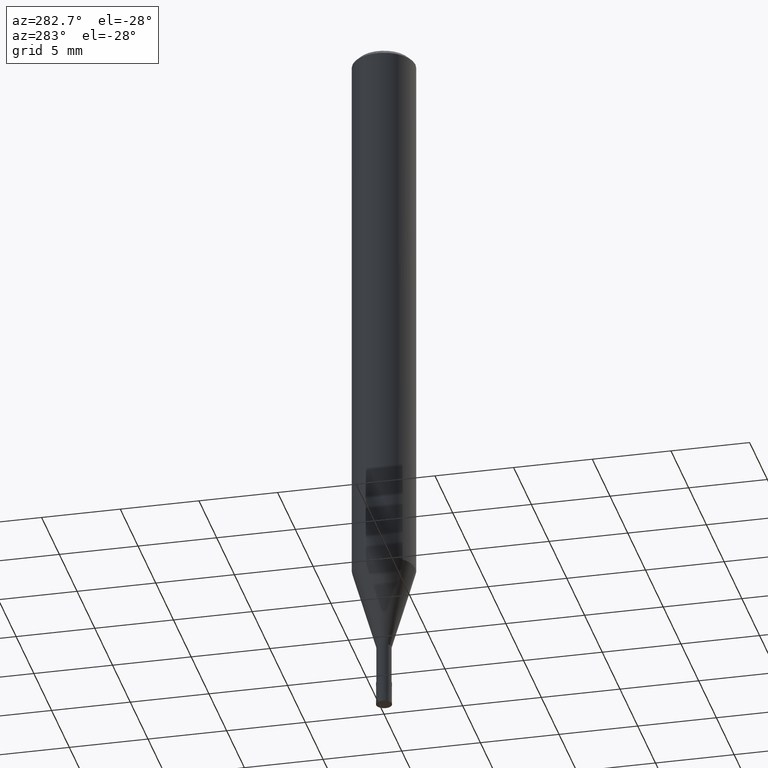
[diagram: clean part render]
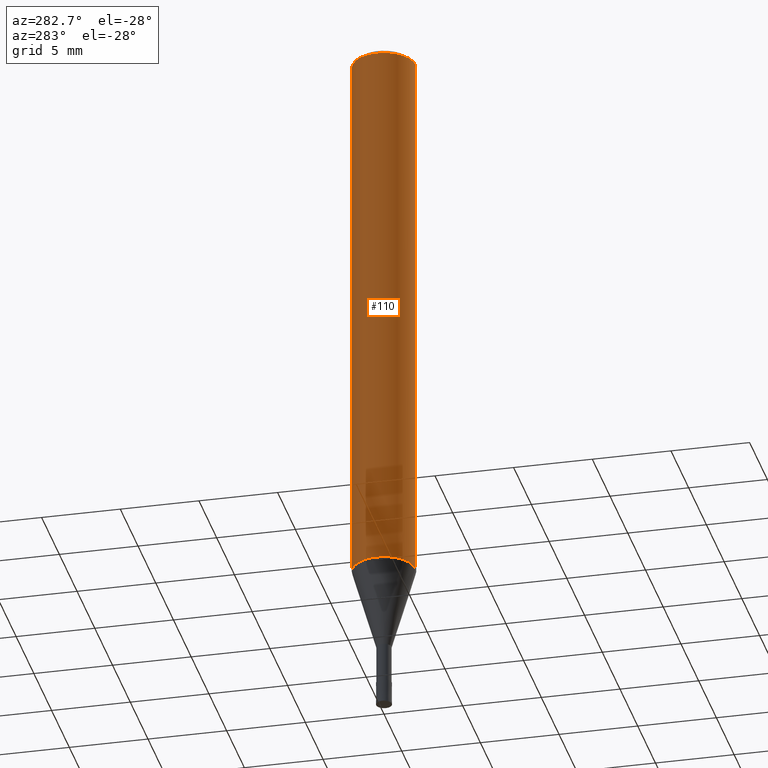
[diagram: same view with one face highlighted and labeled with its STEP entity id]
A machine part, auxiliary view. The second image highlights one B-rep face of the part: STEP entity #110.
In plain terms, the highlighted cylindrical surface (edge-blend (fillet) strip) has radius 2 mm, axis along (-0, -0, 1).
Its self-contained STEP definition (entity closure, byte-faithful):
#94=VERTEX_POINT('',#232);
#96=EDGE_CURVE('',#94,#188,#234,.T.);
#100=VERTEX_POINT('',#238);
#110=ADVANCED_FACE('',(#248),#249,.T.);
#120=EDGE_CURVE('',#190,#94,#260,.T.);
#158=EDGE_CURVE('',#100,#188,#303,.T.);
#188=VERTEX_POINT('',#337);
#190=VERTEX_POINT('',#339);
#198=EDGE_CURVE('',#100,#190,#348,.T.);
#232=CARTESIAN_POINT('',(0.0,2.0,-0.299999999999997));
#234=LINE('',#380,#381);
#238=CARTESIAN_POINT('',(2.44921270764475E-016,-2.0,-35.682));
#248=FACE_OUTER_BOUND('',#398,.T.);
#249=CYLINDRICAL_SURFACE('',#399,2.0);
#260=CIRCLE('',#412,2.0);
#303=CIRCLE('',#468,2.0);
#337=CARTESIAN_POINT('',(0.0,2.0,-35.682));
#339=CARTESIAN_POINT('',(2.44921270764475E-016,-2.0,-0.299999999999997));
#348=LINE('',#524,#525);
#380=CARTESIAN_POINT('',(-2.44921270764475E-016,2.0,-17.991));
#381=VECTOR('',#550,1.0);
#398=EDGE_LOOP('',(#561,#562,#563,#564));
#399=AXIS2_PLACEMENT_3D('',#565,#566,#567);
#412=AXIS2_PLACEMENT_3D('',#577,#578,#579);
#468=AXIS2_PLACEMENT_3D('',#636,#637,#638);
#524=CARTESIAN_POINT('',(2.44921270764475E-016,-2.0,-17.991));
#525=VECTOR('',#696,1.0);
#550=DIRECTION('',(0.0,0.0,-1.0));
#561=ORIENTED_EDGE('',*,*,#96,.T.);
#562=ORIENTED_EDGE('',*,*,#158,.F.);
#563=ORIENTED_EDGE('',*,*,#198,.T.);
#564=ORIENTED_EDGE('',*,*,#120,.T.);
#565=CARTESIAN_POINT('',(0.0,0.0,-17.991));
#566=DIRECTION('',(-0.0,-0.0,1.0));
#567=DIRECTION('',(0.0,1.0,0.0));
#577=CARTESIAN_POINT('',(0.0,0.0,-0.299999999999997));
#578=DIRECTION('',(0.0,0.0,-1.0));
#579=DIRECTION('',(0.0,1.0,0.0));
#636=CARTESIAN_POINT('',(0.0,0.0,-35.682));
#637=DIRECTION('',(0.0,0.0,-1.0));
#638=DIRECTION('',(0.0,1.0,0.0));
#696=DIRECTION('',(-0.0,-0.0,1.0));